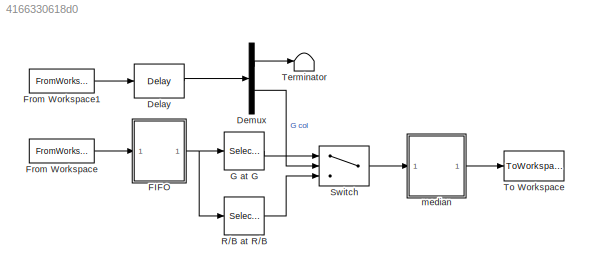
MODEL slx_4166330618d0
KIND model
CONFIG AbsTol = auto
CONFIG EnableMultiTasking = off
CONFIG FixedStep = auto
CONFIG MaxStep = auto
CONFIG MinStep = auto
CONFIG RelTol = 1e-3
CONFIG SampleTimeConstraint = Unconstrained
CONFIG SolverName = FixedStepDiscrete
CONFIG StartTime = 0.0
CONFIG StopTime = xin.TimeInfo.End
BLOCK [Delay] Delay
  DelayLength = mod(2*cols+2,cols)
  InputPortMap = u0
  Ports = [1, 1]
BLOCK [Demux] Demux
  Outputs = 2
  Ports = [1, 2]
BLOCK [SubSystem] FIFO
  Ports = [1, 1]
  ReferencedSubsystem = fifo25
  RequestExecContextInheritance = off
  TreatAsAtomicUnit = on
BLOCK [FromWorkspace] From Workspace
  SampleTime = Ts
  VariableName = xin
BLOCK [FromWorkspace] From Workspace1
  SampleTime = Ts
  VariableName = cin
BLOCK [Selector] G at G
  IndexOptions = Index vector (dialog)
  Indices = [7 9 13 13 13 17 19]
  InputPortWidth = 25
  OutputSizes = 1
  Ports = [1, 1]
BLOCK [Selector] R//B at R//B
  IndexOptions = Index vector (dialog)
  Indices = [3 11 13 13 13 15 23]
  InputPortWidth = 25
  OutputSizes = 1
  Ports = [1, 1]
BLOCK [Switch] Switch
  Criteria = u2 ~= 0
  InputSameDT = off
  SaturateOnIntegerOverflow = off
BLOCK [Terminator] Terminator
BLOCK [ToWorkspace] To Workspace
  FixptAsFi = on
  MaxDataPoints = inf
  Ports = [1]
  SampleTime = -1
  SaveFormat = Timeseries
  VariableName = yout
BLOCK [SubSystem] median
  Ports = [1, 1]
  ReferencedSubsystem = median7
  RequestExecContextInheritance = off
  TreatAsAtomicUnit = on
LINE Delay:1 -> Demux:1
LINE Demux:1 -> Terminator:1
LINE Demux:2 -> Switch:2
NET FIFO:1 -> G at G:1, R//B at R//B:1
LINE From Workspace1:1 -> Delay:1
LINE From Workspace:1 -> FIFO:1
LINE G at G:1 -> Switch:1
LINE R//B at R//B:1 -> Switch:3
LINE Switch:1 -> median:1
LINE median:1 -> To Workspace:1
note: NET lines group one-source signal fan-out (src -> all destinations, sorted); 1:1 wires keep LINE
